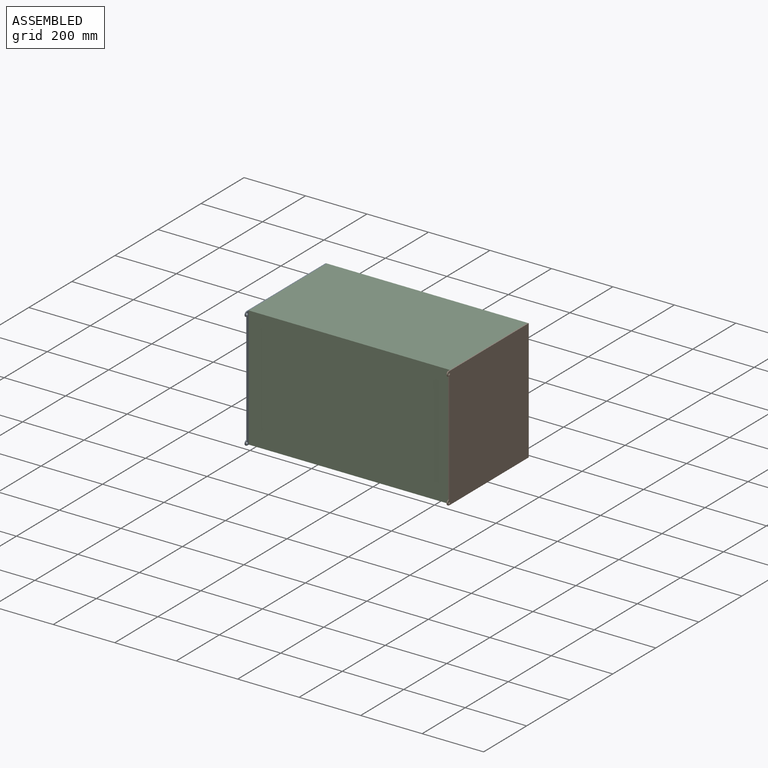
[diagram: assembled view]
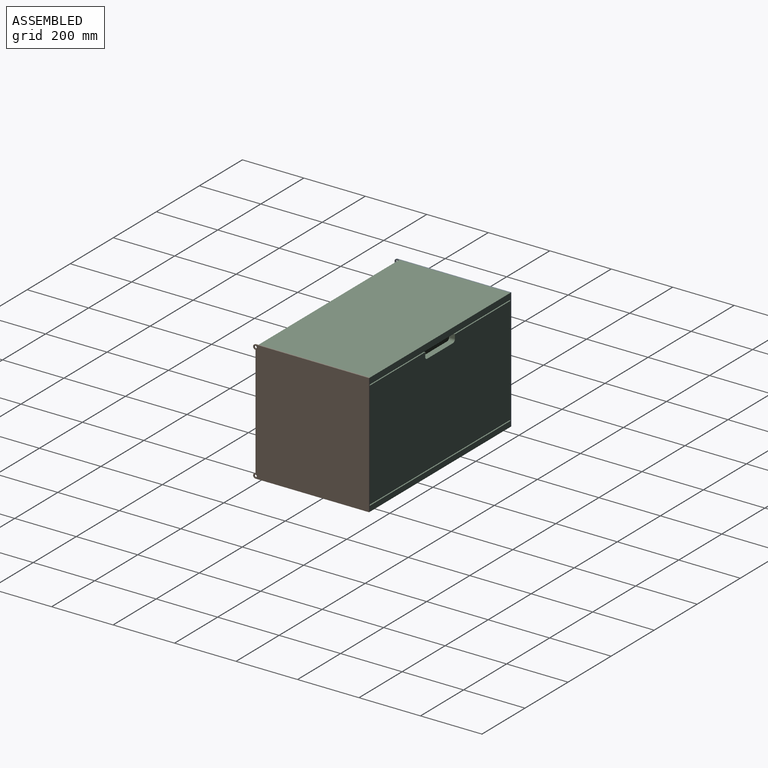
[diagram: assembled view, second angle]
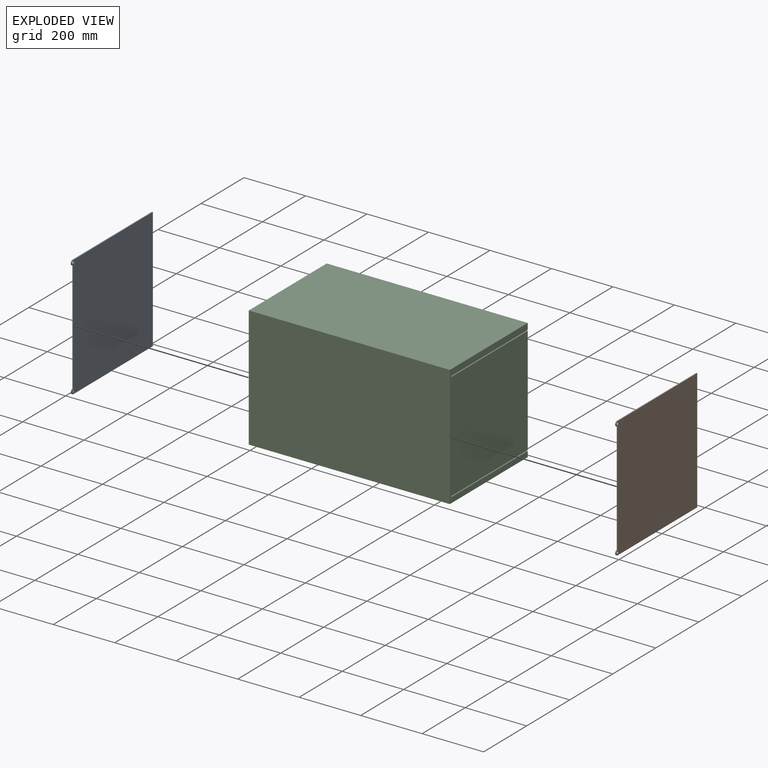
[diagram: exploded view]
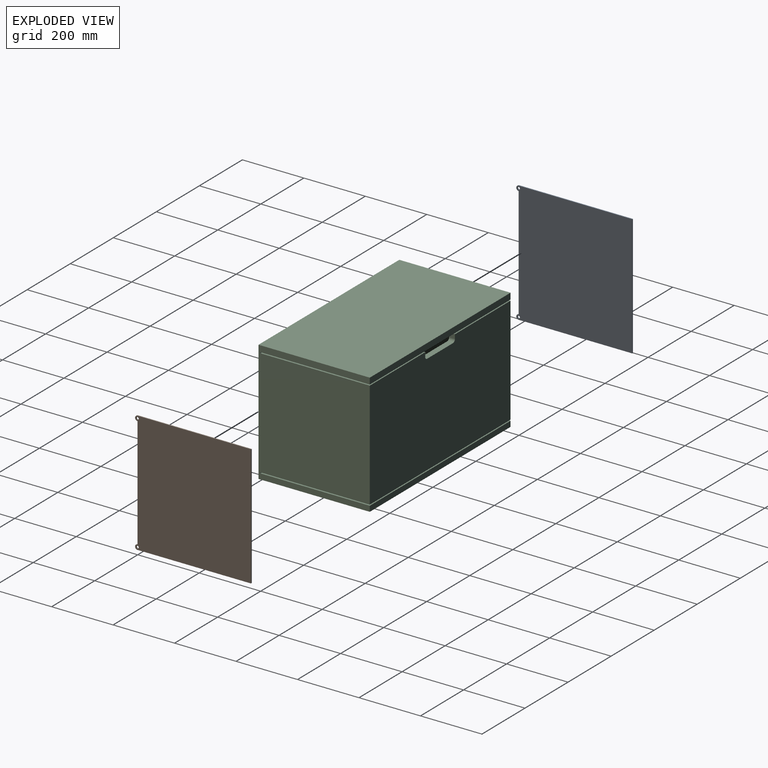
[diagram: exploded view, second angle]
ASSEMBLY  parts=3 mates=2
PART A: 10 faces, bbox 3.2x377.4x394.5 mm
  f0: cylinder r=7.87mm len=15.75mm, axis (-1,0,0), area 78.5mm2, adj f1,f7,f8,f9
  f1: plane 362.99x3.18mm, normal (0,-1,0), area 1152.5mm2, adj f0,f2,f8,f9
  f2: cylinder r=7.87mm len=15.75mm, axis (-1,0,0), area 78.5mm2, adj f1,f3,f8,f9
  f3: plane 369.49x3.18mm, normal (0,0,-1), area 1173.1mm2, adj f2,f4,f8,f9
  f4: plane 394.49x3.18mm, normal (0,1,0), area 1252.5mm2, adj f3,f7,f8,f9
  f5: cylinder r=4mm len=8mm, axis (-1,0,0), area 79.8mm2, adj f8,f9
  f6: cylinder r=4mm len=8mm, axis (-1,0,0), area 79.8mm2, adj f8,f9
  f7: plane 369.49x3.18mm, normal (0,0,1), area 1173.1mm2, adj f0,f4,f8,f9
  f8: plane 394.49x377.37mm, normal (1,0,0), area 145854.9mm2, adj f0,f1,f2,f3,f4,f5,f6,f7
  f9: plane 394.49x377.37mm, normal (-1,0,0), area 145854.9mm2, adj f0,f1,f2,f3,f4,f5,f6,f7
PART B: same geometry as A
PART C: 30 faces, bbox 654.1x362x394.5 mm
  f0: plane 13.83x12.7mm, normal (1,0,0), area 175.6mm2, adj f9,f22,f24,f27
  f1: plane 19.05x13.83mm, normal (1,0,0), area 263.5mm2, adj f10,f11,f22,f25
  f2: plane 355.6x257.66mm, normal (0,0,1), area 14349.9mm2, adj f3,f4,f11,f18,f24,f25,f27,f28
  f3: plane 13.84x12.7mm, normal (-1,0,0), area 175.8mm2, adj f2,f5,f24,f27
  f4: plane 19.05x13.84mm, normal (-1,0,0), area 263.7mm2, adj f2,f6,f11,f25
  f5: cylinder r=9.01mm len=12.7mm, axis (0,1,0), area 178.7mm2, adj f3,f7,f24,f27
  f6: cylinder r=9.01mm len=19.05mm, axis (0,1,0), area 268mm2, adj f4,f8,f11,f25
  f7: plane 120x12.7mm, normal (0,0,1), area 1524mm2, adj f5,f9,f24,f27
  f8: plane 120x19.05mm, normal (0,0,1), area 2286mm2, adj f6,f10,f11,f25
  f9: cylinder r=8.94mm len=12.7mm, axis (0,1,0), area 179.2mm2, adj f0,f7,f24,f27
  f10: cylinder r=8.94mm len=19.05mm, axis (0,1,0), area 268.9mm2, adj f1,f8,f11,f25
  f11: plane 654.05x350.01mm, normal (0,1,0), area 225814.7mm2, adj f1,f2,f4,f6,f8,f10,f13,f18
  f12: plane 654.05x17.92mm, normal (0,1,0), area 11718.6mm2, adj f13,f17,f18,f20
  f13: plane 394.49x361.95mm, normal (-1,0,0), area 140526.7mm2, adj f11,f12,f14,f15,f16,f17,f19,f20
  f14: plane 654.05x394.49mm, normal (0,-1,0), area 258014.5mm2, adj f13,f15,f17,f18
  f15: plane 654.05x361.95mm, normal (0,0,1), area 236733.4mm2, adj f13,f14,f16,f18
  f16: plane 654.05x20.21mm, normal (0,1,0), area 13220.1mm2, adj f13,f15,f18,f23
  f17: plane 654.05x361.95mm, normal (0,0,-1), area 236733.4mm2, adj f12,f13,f14,f18
  f18: plane 394.49x361.95mm, normal (1,0,0), area 140526.7mm2, adj f2,f11,f12,f14,f15,f16,f17,f19
  f19: plane 654.05x355.6mm, normal (0,0,-1), area 232580.2mm2, adj f11,f13,f18,f21
  f20: plane 654.05x355.6mm, normal (0,0,1), area 232580.2mm2, adj f12,f13,f18,f21
  f21: plane 654.05x3.18mm, normal (0,1,0), area 2076.6mm2, adj f13,f18,f19,f20
  f22: plane 355.6x258.37mm, normal (0,0,1), area 14372.7mm2, adj f0,f1,f11,f13,f24,f25,f26,f27
  f23: plane 654.05x355.6mm, normal (0,0,-1), area 232580.2mm2, adj f13,f16,f18,f24
  f24: plane 654.05x25.94mm, normal (0,1,0), area 5184.5mm2, adj f0,f2,f3,f5,f7,f9,f13,f18
  f25: plane 615.95x330.96mm, normal (0,-1,0), area 200745.6mm2, adj f1,f2,f4,f6,f8,f10,f22,f26
  f26: plane 330.96x323.85mm, normal (1,0,0), area 107180.7mm2, adj f22,f25,f27,f29
  f27: plane 615.95x330.96mm, normal (0,1,0), area 200745.6mm2, adj f0,f2,f3,f5,f7,f9,f22,f26
  f28: plane 330.96x323.85mm, normal (-1,0,0), area 107180.7mm2, adj f2,f25,f27,f29
  f29: plane 615.95x323.85mm, normal (0,0,1), area 199475.4mm2, adj f25,f26,f27,f28
PLACE A t=(-7210.99,5132.8,-1595.34)mm
PLACE B t=(-6553.76,5132.8,-1595.34)mm
PLACE C t=(-5278.26,5132.8,-4092.73)mm
MATE fastened B.f9 <-> C.f18  axis (-1,0,0) through (-6553.76,-3032.7,1335.67)mm
MATE fastened A.f8 <-> C.f13  axis (1,0,0) through (-7207.81,-3032.7,1335.67)mm
